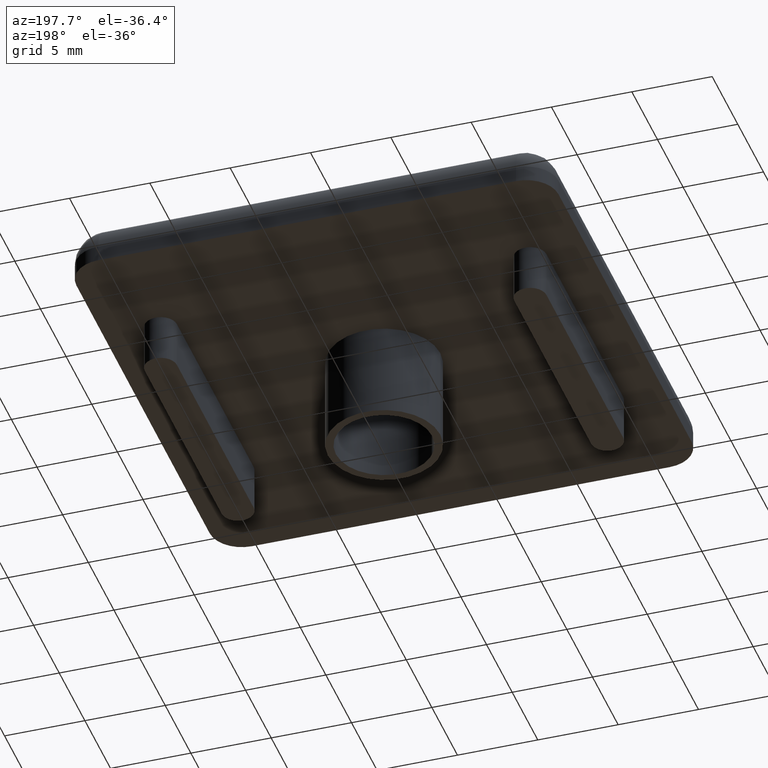
[diagram: clean part render]
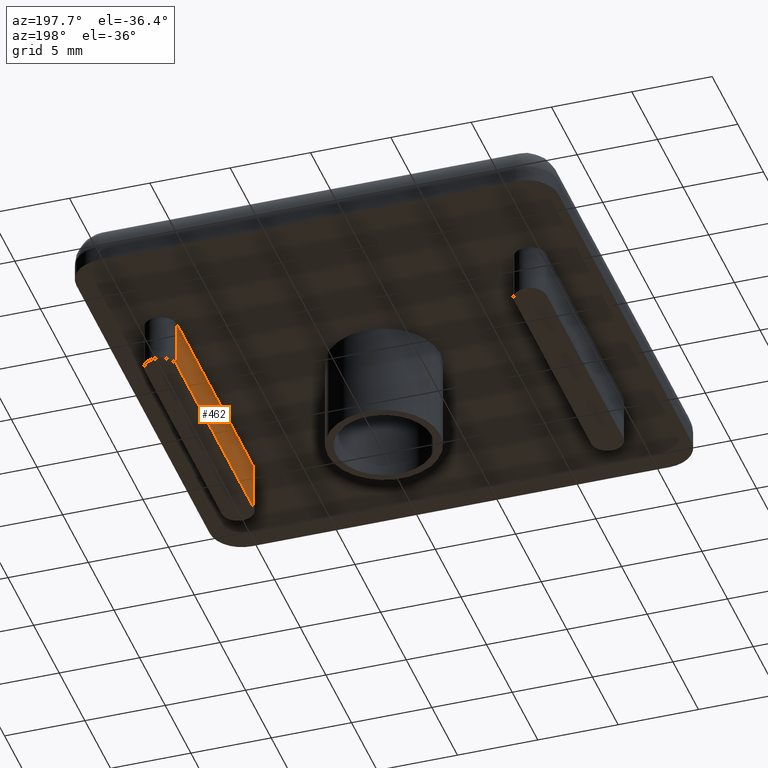
[diagram: same view with one face highlighted and labeled with its STEP entity id]
A machine part, auxiliary view. The second image highlights one B-rep face of the part: STEP entity #462.
In plain terms, the highlighted planar face has unit normal (-1, 0, 0).
Its self-contained STEP definition (entity closure, byte-faithful):
#26=LINE('',#751,#62);
#27=LINE('',#754,#63);
#31=LINE('',#765,#67);
#32=LINE('',#767,#68);
#62=VECTOR('',#590,15.);
#63=VECTOR('',#593,3.);
#67=VECTOR('',#605,3.);
#68=VECTOR('',#608,15.);
#94=PLANE('',#510);
#118=FACE_OUTER_BOUND('',#156,.T.);
#156=EDGE_LOOP('',(#348,#349,#350,#351));
#225=VERTEX_POINT('',#744);
#228=VERTEX_POINT('',#749);
#229=VERTEX_POINT('',#753);
#232=VERTEX_POINT('',#763);
#268=EDGE_CURVE('',#228,#225,#26,.T.);
#269=EDGE_CURVE('',#225,#229,#27,.T.);
#275=EDGE_CURVE('',#228,#232,#31,.T.);
#276=EDGE_CURVE('',#229,#232,#32,.T.);
#348=ORIENTED_EDGE('',*,*,#268,.F.);
#349=ORIENTED_EDGE('',*,*,#275,.T.);
#350=ORIENTED_EDGE('',*,*,#276,.F.);
#351=ORIENTED_EDGE('',*,*,#269,.F.);
#462=ADVANCED_FACE('',(#118),#94,.T.);
#510=AXIS2_PLACEMENT_3D('',#766,#606,#607);
#590=DIRECTION('',(0.,-1.,0.));
#593=DIRECTION('',(0.,0.,-1.));
#605=DIRECTION('',(0.,0.,-1.));
#606=DIRECTION('center_axis',(-1.,0.,0.));
#607=DIRECTION('ref_axis',(0.,1.,0.));
#608=DIRECTION('',(0.,1.,0.));
#744=CARTESIAN_POINT('',(10.5,-7.5,0.));
#749=CARTESIAN_POINT('',(10.5,7.5,0.));
#751=CARTESIAN_POINT('',(10.5,-3.75,0.));
#753=CARTESIAN_POINT('',(10.5,-7.5,-3.));
#754=CARTESIAN_POINT('',(10.5,-7.5,0.));
#763=CARTESIAN_POINT('',(10.5,7.5,-3.));
#765=CARTESIAN_POINT('',(10.5,7.5,0.));
#766=CARTESIAN_POINT('Origin',(10.5,-7.5,0.));
#767=CARTESIAN_POINT('',(10.5,-7.5,-3.));